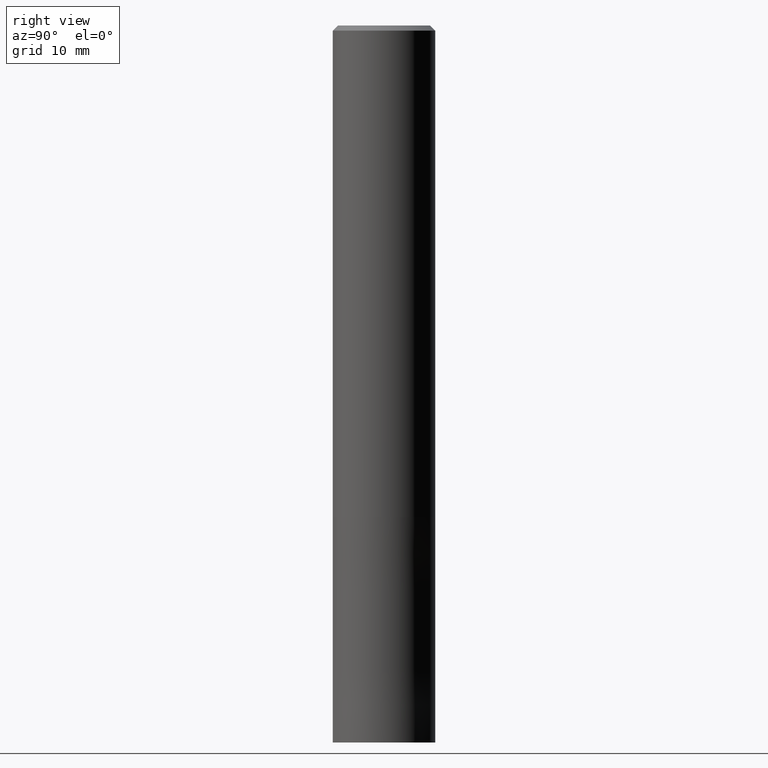
[diagram: clean part render]
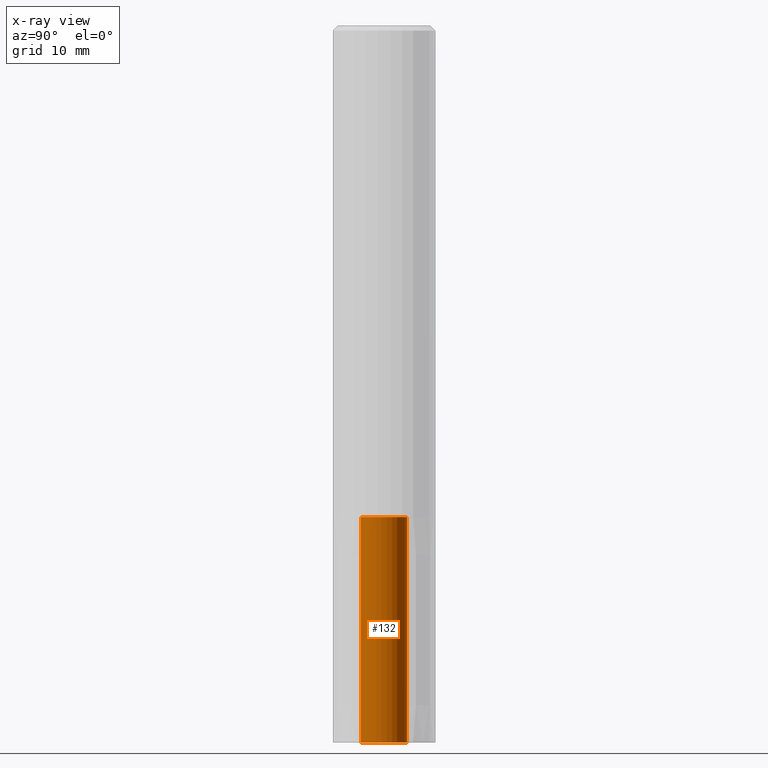
[diagram: x-ray — body ghosted, one internal face saturated and labeled with its STEP entity id]
A machine part, right view, then the same camera in x-ray: the body is ghosted and one INTERNAL B-rep face — a face not visible from any outside direction — is saturated and labeled: STEP entity #132.
In plain terms, the highlighted cylindrical surface (edge-blend (fillet) strip) has radius 2.25 mm, axis along (-0, -0, 1).
Its self-contained STEP definition (entity closure, byte-faithful):
#108=VERTEX_POINT('',#255);
#130=VERTEX_POINT('',#281);
#132=ADVANCED_FACE('',(#283),#284,.F.);
#162=EDGE_CURVE('',#130,#202,#321,.T.);
#176=EDGE_CURVE('',#108,#202,#336,.T.);
#190=EDGE_CURVE('',#108,#198,#352,.T.);
#198=VERTEX_POINT('',#360);
#200=EDGE_CURVE('',#198,#130,#362,.T.);
#202=VERTEX_POINT('',#364);
#255=CARTESIAN_POINT('',(0.0,2.25,-48.0));
#281=CARTESIAN_POINT('',(2.75536429610035E-016,-2.25,-70.0));
#283=FACE_OUTER_BOUND('',#449,.T.);
#284=CYLINDRICAL_SURFACE('',#450,2.25);
#321=LINE('',#496,#497);
#336=CIRCLE('',#515,2.25);
#352=LINE('',#535,#536);
#360=CARTESIAN_POINT('',(0.0,2.25,-70.0));
#362=CIRCLE('',#548,2.25);
#364=CARTESIAN_POINT('',(2.75536429610035E-016,-2.25,-48.0));
#449=EDGE_LOOP('',(#632,#633,#634,#635));
#450=AXIS2_PLACEMENT_3D('',#636,#637,#638);
#496=CARTESIAN_POINT('',(2.75536429610035E-016,-2.25,-59.0));
#497=VECTOR('',#691,1.0);
#515=AXIS2_PLACEMENT_3D('',#706,#707,#708);
#535=CARTESIAN_POINT('',(-2.75536429610035E-016,2.25,-59.0));
#536=VECTOR('',#729,1.0);
#548=AXIS2_PLACEMENT_3D('',#737,#738,#739);
#632=ORIENTED_EDGE('',*,*,#190,.T.);
#633=ORIENTED_EDGE('',*,*,#200,.T.);
#634=ORIENTED_EDGE('',*,*,#162,.T.);
#635=ORIENTED_EDGE('',*,*,#176,.F.);
#636=CARTESIAN_POINT('',(0.0,0.0,-59.0));
#637=DIRECTION('',(-0.0,-0.0,1.0));
#638=DIRECTION('',(0.0,1.0,0.0));
#691=DIRECTION('',(0.0,-0.0,1.0));
#706=CARTESIAN_POINT('',(0.0,0.0,-48.0));
#707=DIRECTION('',(0.0,0.0,-1.0));
#708=DIRECTION('',(0.0,1.0,0.0));
#729=DIRECTION('',(0.0,-0.0,-1.0));
#737=CARTESIAN_POINT('',(0.0,0.0,-70.0));
#738=DIRECTION('',(0.0,0.0,-1.0));
#739=DIRECTION('',(0.0,1.0,0.0));